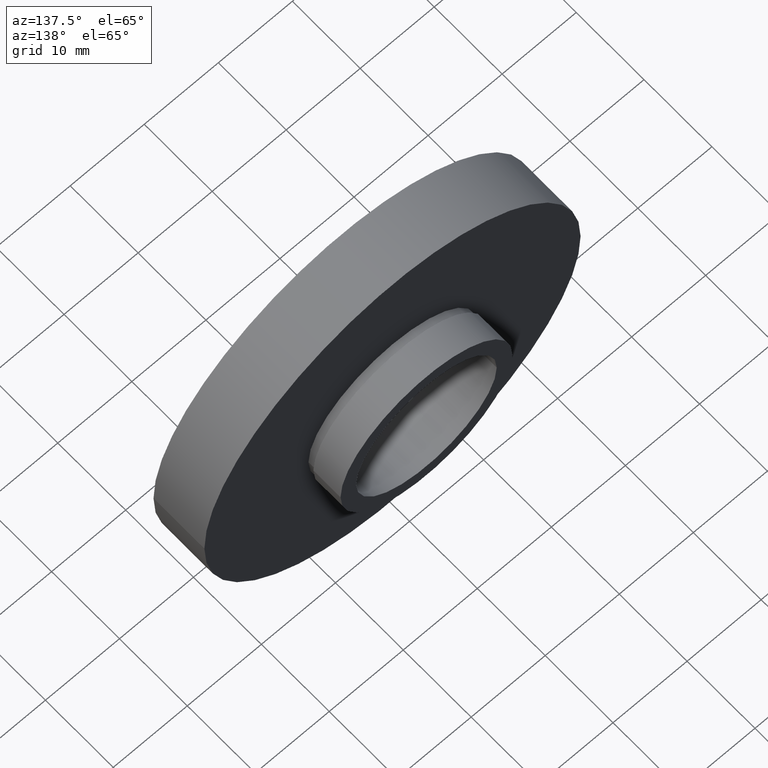
[diagram: clean part render]
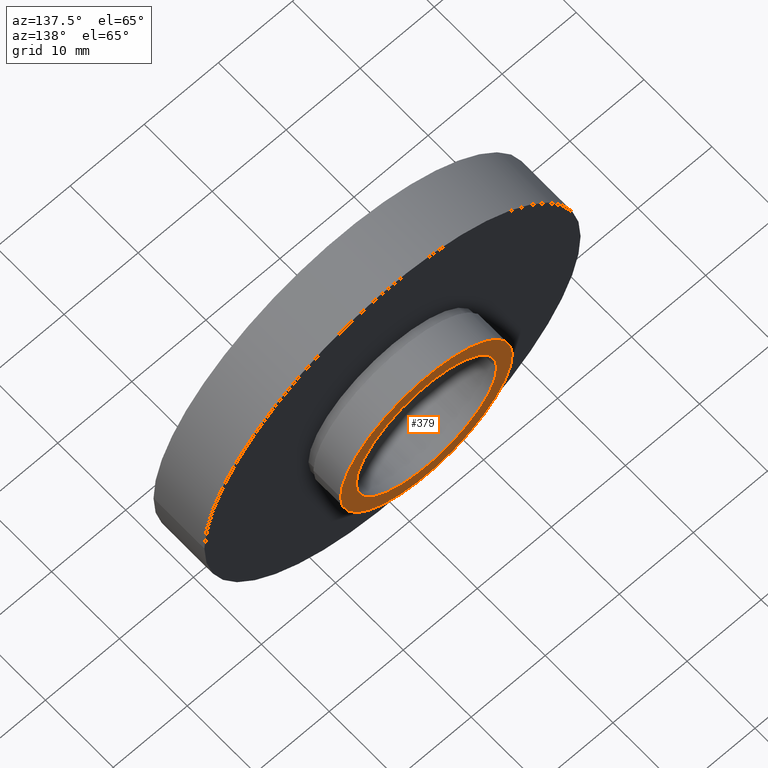
[diagram: same view with one face highlighted and labeled with its STEP entity id]
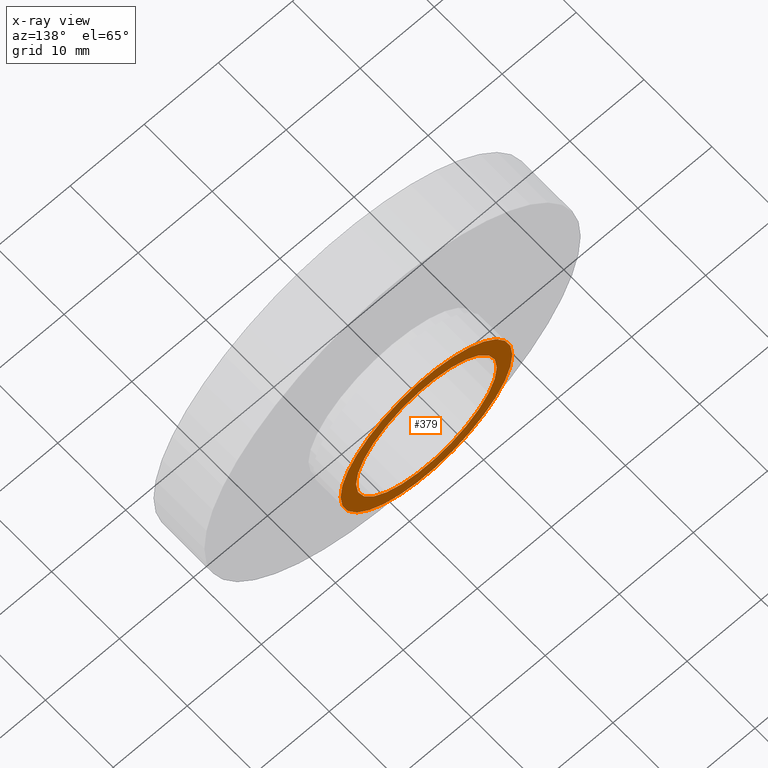
[diagram: x-ray of the same camera — body ghosted, the highlighted face saturated]
A machine part, auxiliary view. The second image highlights one B-rep face of the part: STEP entity #379.
The next image is the same camera in x-ray: the body ghosted, the highlighted face saturated — about 0% of this face is hidden behind the body in this view.
In plain terms, the highlighted planar face has unit normal (0, -1, 0).
Its self-contained STEP definition (entity closure, byte-faithful):
#21 = CIRCLE ( 'NONE', #28, 9.500000000000001800 ) ;
#28 = AXIS2_PLACEMENT_3D ( 'NONE', #35, #600, #464 ) ;
#35 = CARTESIAN_POINT ( 'NONE',  ( 5.371323195044473300E-016, 12.49999999999999600, 0.0000000000000000000 ) ) ;
#50 = CARTESIAN_POINT ( 'NONE',  ( 5.371323195044474300E-016, 12.49999999999999600, 0.0000000000000000000 ) ) ;
#51 = FACE_OUTER_BOUND ( 'NONE', #395, .T. ) ;
#66 = CARTESIAN_POINT ( 'NONE',  ( 5.371323195044473300E-016, 12.49999999999999600, 0.0000000000000000000 ) ) ;
#84 = DIRECTION ( 'NONE',  ( 1.000000000000000000, 1.224646799147351000E-016, 0.0000000000000000000 ) ) ;
#111 = DIRECTION ( 'NONE',  ( -1.000000000000000000, -1.495451272393799300E-016, 0.0000000000000000000 ) ) ;
#130 = DIRECTION ( 'NONE',  ( -1.224646799147351000E-016, 1.000000000000000000, -0.0000000000000000000 ) ) ;
#143 = EDGE_CURVE ( 'NONE', #273, #591, #21, .T. ) ;
#154 = CIRCLE ( 'NONE', #409, 11.60000000000000000 ) ;
#186 = DIRECTION ( 'NONE',  ( -1.224646799147351000E-016, 1.000000000000000000, -0.0000000000000000000 ) ) ;
#191 = DIRECTION ( 'NONE',  ( -1.000000000000000000, -1.495451272393799300E-016, 0.0000000000000000000 ) ) ;
#201 = CIRCLE ( 'NONE', #290, 9.500000000000001800 ) ;
#211 = CARTESIAN_POINT ( 'NONE',  ( -11.60000000000000000, 12.49999999999999500, 0.0000000000000000000 ) ) ;
#224 = CARTESIAN_POINT ( 'NONE',  ( 9.500000000000001800, 12.49999999999999800, 0.0000000000000000000 ) ) ;
#246 = EDGE_CURVE ( 'NONE', #623, #396, #554, .T. ) ;
#265 = CARTESIAN_POINT ( 'NONE',  ( 5.371323195044474300E-016, 12.49999999999999600, 0.0000000000000000000 ) ) ;
#270 = EDGE_CURVE ( 'NONE', #591, #273, #201, .T. ) ;
#273 = VERTEX_POINT ( 'NONE', #490 ) ;
#278 = PLANE ( 'NONE',  #497 ) ;
#287 = CARTESIAN_POINT ( 'NONE',  ( -9.500000000000001800, 12.49999999999999500, 0.0000000000000000000 ) ) ;
#290 = AXIS2_PLACEMENT_3D ( 'NONE', #66, #578, #604 ) ;
#302 = FACE_BOUND ( 'NONE', #583, .T. ) ;
#318 = ORIENTED_EDGE ( 'NONE', *, *, #246, .T. ) ;
#325 = AXIS2_PLACEMENT_3D ( 'NONE', #50, #186, #191 ) ;
#362 = ORIENTED_EDGE ( 'NONE', *, *, #143, .F. ) ;
#379 = ADVANCED_FACE ( 'NONE', ( #302, #51 ), #278, .F. ) ;
#389 = DIRECTION ( 'NONE',  ( 1.224646799147351000E-016, -1.000000000000000000, 0.0000000000000000000 ) ) ;
#395 = EDGE_LOOP ( 'NONE', ( #560, #318 ) ) ;
#396 = VERTEX_POINT ( 'NONE', #211 ) ;
#409 = AXIS2_PLACEMENT_3D ( 'NONE', #265, #130, #111 ) ;
#464 = DIRECTION ( 'NONE',  ( -1.000000000000000000, -1.826024711554533400E-016, 0.0000000000000000000 ) ) ;
#490 = CARTESIAN_POINT ( 'NONE',  ( 9.500000000000001800, 12.49999999999999800, 1.163414459189985700E-015 ) ) ;
#497 = AXIS2_PLACEMENT_3D ( 'NONE', #224, #389, #84 ) ;
#508 = EDGE_CURVE ( 'NONE', #396, #623, #154, .T. ) ;
#554 = CIRCLE ( 'NONE', #325, 11.60000000000000000 ) ;
#560 = ORIENTED_EDGE ( 'NONE', *, *, #508, .T. ) ;
#570 = CARTESIAN_POINT ( 'NONE',  ( 11.60000000000000000, 12.49999999999999800, 1.420590287010929500E-015 ) ) ;
#571 = ORIENTED_EDGE ( 'NONE', *, *, #270, .F. ) ;
#578 = DIRECTION ( 'NONE',  ( -1.224646799147351000E-016, 1.000000000000000000, -0.0000000000000000000 ) ) ;
#583 = EDGE_LOOP ( 'NONE', ( #571, #362 ) ) ;
#591 = VERTEX_POINT ( 'NONE', #287 ) ;
#600 = DIRECTION ( 'NONE',  ( -1.224646799147351000E-016, 1.000000000000000000, -0.0000000000000000000 ) ) ;
#604 = DIRECTION ( 'NONE',  ( -1.000000000000000000, -1.826024711554533400E-016, 0.0000000000000000000 ) ) ;
#623 = VERTEX_POINT ( 'NONE', #570 ) ;